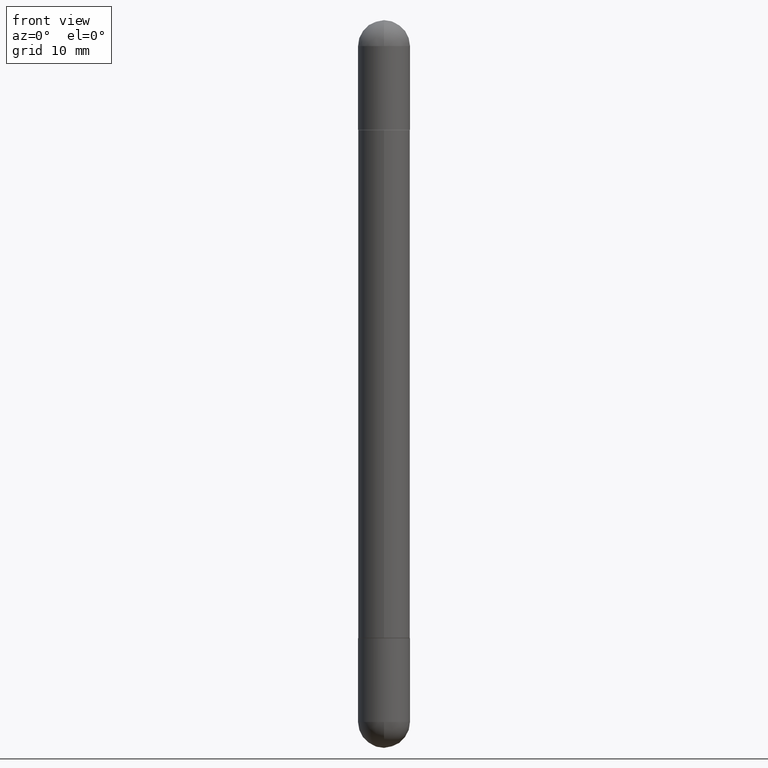
[diagram: clean part render]
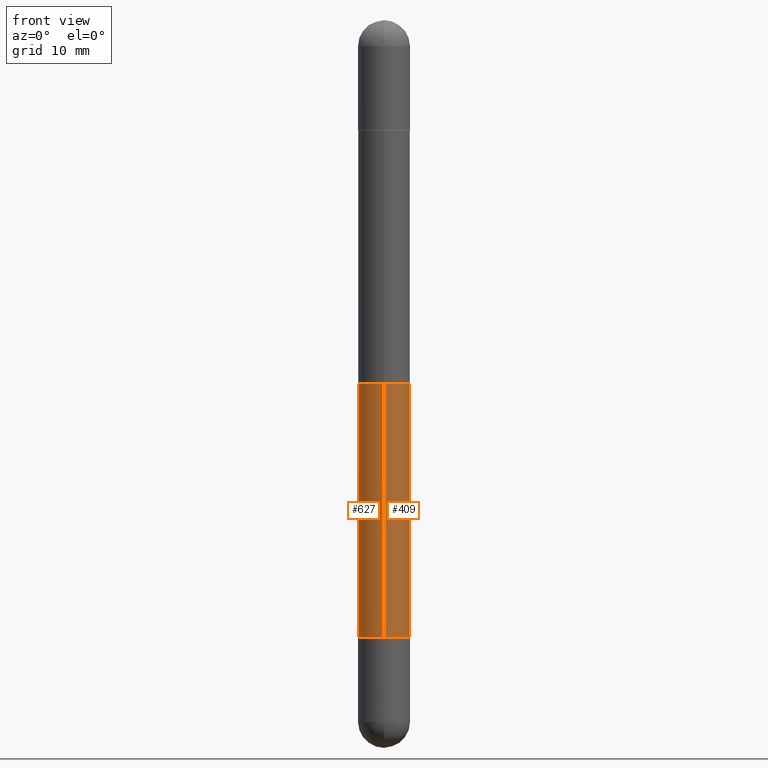
[diagram: same view with one multi-face feature highlighted, each face labeled with its STEP entity id]
A machine part, front view. The highlighted faces form ONE feature: a constant-radius fillet chain: 2 tangent blend faces with common blend radius 2.2504 mm. The faces share edges in the B-rep.
Their STEP definitions:
[1] entity #409 (Cylinder):
#17 = ORIENTED_EDGE ( 'NONE', *, *, #86, .F. ) ;
#24 = ORIENTED_EDGE ( 'NONE', *, *, #467, .T. ) ;
#37 = CARTESIAN_POINT ( 'NONE',  ( 6.078401226025891027E-16, 0.08859999999999287890, -2.105300000000001059 ) ) ;
#46 = CARTESIAN_POINT ( 'NONE',  ( -6.186904932429535505E-16, -0.08860000000000764486, -0.3750000000000000555 ) ) ;
#74 = DIRECTION ( 'NONE',  ( 2.445161581846673899E-29, -3.491921301581947653E-15, 1.000000000000000000 ) ) ;
#86 = EDGE_CURVE ( 'NONE', #566, #807, #400, .T. ) ;
#158 = AXIS2_PLACEMENT_3D ( 'NONE', #640, #74, #322 ) ;
#231 = CARTESIAN_POINT ( 'NONE',  ( -6.186904932429534519E-16, -0.08860000000000761711, -2.105300000000000171 ) ) ;
#238 = VERTEX_POINT ( 'NONE', #46 ) ;
#239 = ORIENTED_EDGE ( 'NONE', *, *, #548, .T. ) ;
#301 = DIRECTION ( 'NONE',  ( -2.445161581846673899E-29, 3.491921301581948047E-15, -1.000000000000000000 ) ) ;
#306 = CIRCLE ( 'NONE', #398, 0.08860000000000024800 ) ;
#322 = DIRECTION ( 'NONE',  ( -6.982962677686265922E-15, -1.000000000000000000, -3.854187349977787355E-15 ) ) ;
#336 = VERTEX_POINT ( 'NONE', #231 ) ;
#356 = EDGE_LOOP ( 'NONE', ( #17, #489, #24, #239 ) ) ;
#362 = CARTESIAN_POINT ( 'NONE',  ( 6.078401226026106978E-16, 0.08859999999999286502, -0.3749999999999993339 ) ) ;
#387 = CARTESIAN_POINT ( 'NONE',  ( 6.078401226025584357E-16, 0.08860000000000010922, -2.480299999999999727 ) ) ;
#388 = VECTOR ( 'NONE', #301, 39.37007874015748143 ) ;
#398 = AXIS2_PLACEMENT_3D ( 'NONE', #505, #761, #441 ) ;
#400 = LINE ( 'NONE', #387, #518 ) ;
#409 = ADVANCED_FACE ( 'NONE', ( #687 ), #557, .T. ) ;
#423 = LINE ( 'NONE', #764, #388 ) ;
#441 = DIRECTION ( 'NONE',  ( -6.982962677686265922E-15, -1.000000000000000000, 3.083349879982229648E-15 ) ) ;
#457 = DIRECTION ( 'NONE',  ( -2.445161581846673899E-29, 3.491921301581948047E-15, -1.000000000000000000 ) ) ;
#467 = EDGE_CURVE ( 'NONE', #238, #336, #423, .T. ) ;
#488 = DIRECTION ( 'NONE',  ( -2.445161581846673899E-29, 3.491921301581947653E-15, -1.000000000000000000 ) ) ;
#489 = ORIENTED_EDGE ( 'NONE', *, *, #603, .F. ) ;
#491 = DIRECTION ( 'NONE',  ( -6.982962677686265922E-15, -1.000000000000000000, -6.166699759964469551E-15 ) ) ;
#505 = CARTESIAN_POINT ( 'NONE',  ( 5.147798678261803388E-29, -7.351541916220477463E-15, -2.105300000000000615 ) ) ;
#518 = VECTOR ( 'NONE', #457, 39.37007874015748143 ) ;
#543 = CARTESIAN_POINT ( 'NONE',  ( 0.000000000000000000, 0.000000000000000000, -2.480300000000000171 ) ) ;
#548 = EDGE_CURVE ( 'NONE', #336, #807, #306, .T. ) ;
#557 = CYLINDRICAL_SURFACE ( 'NONE', #700, 0.08860000000000010922 ) ;
#566 = VERTEX_POINT ( 'NONE', #362 ) ;
#568 = CIRCLE ( 'NONE', #158, 0.08860000000000024800 ) ;
#603 = EDGE_CURVE ( 'NONE', #238, #566, #568, .T. ) ;
#640 = CARTESIAN_POINT ( 'NONE',  ( 5.147798678261803388E-29, -7.351541916220477463E-15, -0.3749999999999996669 ) ) ;
#687 = FACE_OUTER_BOUND ( 'NONE', #356, .T. ) ;
#700 = AXIS2_PLACEMENT_3D ( 'NONE', #543, #488, #491 ) ;
#761 = DIRECTION ( 'NONE',  ( -2.445161581846673899E-29, 3.491921301581947653E-15, 1.000000000000000000 ) ) ;
#764 = CARTESIAN_POINT ( 'NONE',  ( -6.186904932430039390E-16, -0.08860000000000010922, -2.480300000000001059 ) ) ;
#807 = VERTEX_POINT ( 'NONE', #37 ) ;
[2] entity #627 (Cylinder):
#2 = AXIS2_PLACEMENT_3D ( 'NONE', #61, #313, #561 ) ;
#19 = EDGE_CURVE ( 'NONE', #566, #238, #625, .T. ) ;
#37 = CARTESIAN_POINT ( 'NONE',  ( 6.078401226025891027E-16, 0.08859999999999287890, -2.105300000000001059 ) ) ;
#46 = CARTESIAN_POINT ( 'NONE',  ( -6.186904932429535505E-16, -0.08860000000000764486, -0.3750000000000000555 ) ) ;
#61 = CARTESIAN_POINT ( 'NONE',  ( 0.000000000000000000, 0.000000000000000000, -2.480300000000000171 ) ) ;
#81 = ORIENTED_EDGE ( 'NONE', *, *, #19, .F. ) ;
#86 = EDGE_CURVE ( 'NONE', #566, #807, #400, .T. ) ;
#105 = AXIS2_PLACEMENT_3D ( 'NONE', #564, #494, #134 ) ;
#134 = DIRECTION ( 'NONE',  ( -6.982962677686265922E-15, -1.000000000000000000, 3.083349879982229648E-15 ) ) ;
#201 = ORIENTED_EDGE ( 'NONE', *, *, #467, .F. ) ;
#204 = CARTESIAN_POINT ( 'NONE',  ( 5.147798678261803388E-29, -7.351541916220477463E-15, -0.3749999999999996669 ) ) ;
#205 = CYLINDRICAL_SURFACE ( 'NONE', #2, 0.08860000000000010922 ) ;
#218 = ORIENTED_EDGE ( 'NONE', *, *, #236, .T. ) ;
#231 = CARTESIAN_POINT ( 'NONE',  ( -6.186904932429534519E-16, -0.08860000000000761711, -2.105300000000000171 ) ) ;
#236 = EDGE_CURVE ( 'NONE', #807, #336, #462, .T. ) ;
#238 = VERTEX_POINT ( 'NONE', #46 ) ;
#275 = ORIENTED_EDGE ( 'NONE', *, *, #86, .T. ) ;
#278 = DIRECTION ( 'NONE',  ( -6.982962677686265922E-15, -1.000000000000000000, -3.854187349977787355E-15 ) ) ;
#301 = DIRECTION ( 'NONE',  ( -2.445161581846673899E-29, 3.491921301581948047E-15, -1.000000000000000000 ) ) ;
#313 = DIRECTION ( 'NONE',  ( -2.445161581846673899E-29, 3.491921301581947653E-15, -1.000000000000000000 ) ) ;
#336 = VERTEX_POINT ( 'NONE', #231 ) ;
#362 = CARTESIAN_POINT ( 'NONE',  ( 6.078401226026106978E-16, 0.08859999999999286502, -0.3749999999999993339 ) ) ;
#387 = CARTESIAN_POINT ( 'NONE',  ( 6.078401226025584357E-16, 0.08860000000000010922, -2.480299999999999727 ) ) ;
#388 = VECTOR ( 'NONE', #301, 39.37007874015748143 ) ;
#400 = LINE ( 'NONE', #387, #518 ) ;
#423 = LINE ( 'NONE', #764, #388 ) ;
#457 = DIRECTION ( 'NONE',  ( -2.445161581846673899E-29, 3.491921301581948047E-15, -1.000000000000000000 ) ) ;
#462 = CIRCLE ( 'NONE', #105, 0.08860000000000024800 ) ;
#467 = EDGE_CURVE ( 'NONE', #238, #336, #423, .T. ) ;
#494 = DIRECTION ( 'NONE',  ( -2.445161581846673899E-29, 3.491921301581947653E-15, 1.000000000000000000 ) ) ;
#504 = FACE_OUTER_BOUND ( 'NONE', #791, .T. ) ;
#518 = VECTOR ( 'NONE', #457, 39.37007874015748143 ) ;
#561 = DIRECTION ( 'NONE',  ( -6.982962677686265922E-15, -1.000000000000000000, -6.166699759964469551E-15 ) ) ;
#564 = CARTESIAN_POINT ( 'NONE',  ( 5.147798678261803388E-29, -7.351541916220477463E-15, -2.105300000000000615 ) ) ;
#566 = VERTEX_POINT ( 'NONE', #362 ) ;
#625 = CIRCLE ( 'NONE', #769, 0.08860000000000024800 ) ;
#627 = ADVANCED_FACE ( 'NONE', ( #504 ), #205, .T. ) ;
#721 = DIRECTION ( 'NONE',  ( 2.445161581846673899E-29, -3.491921301581947653E-15, 1.000000000000000000 ) ) ;
#764 = CARTESIAN_POINT ( 'NONE',  ( -6.186904932430039390E-16, -0.08860000000000010922, -2.480300000000001059 ) ) ;
#769 = AXIS2_PLACEMENT_3D ( 'NONE', #204, #721, #278 ) ;
#791 = EDGE_LOOP ( 'NONE', ( #81, #275, #218, #201 ) ) ;
#807 = VERTEX_POINT ( 'NONE', #37 ) ;